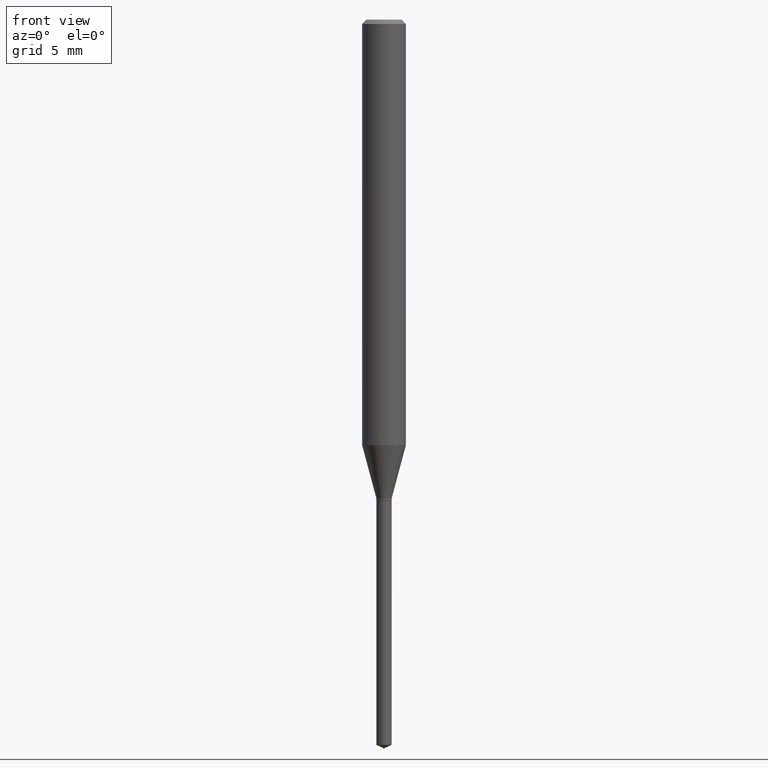
[diagram: clean part render]
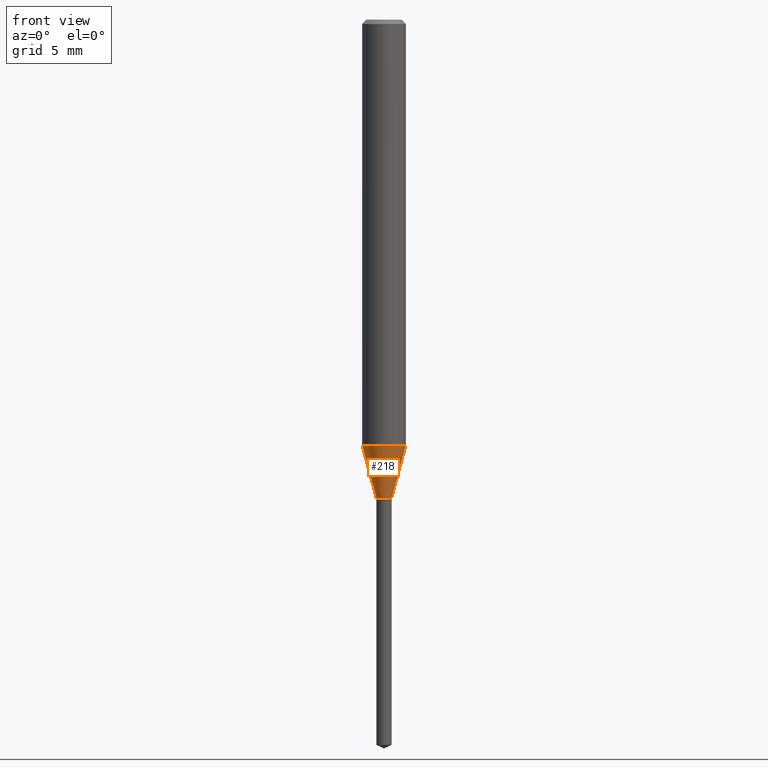
[diagram: same view with one face highlighted and labeled with its STEP entity id]
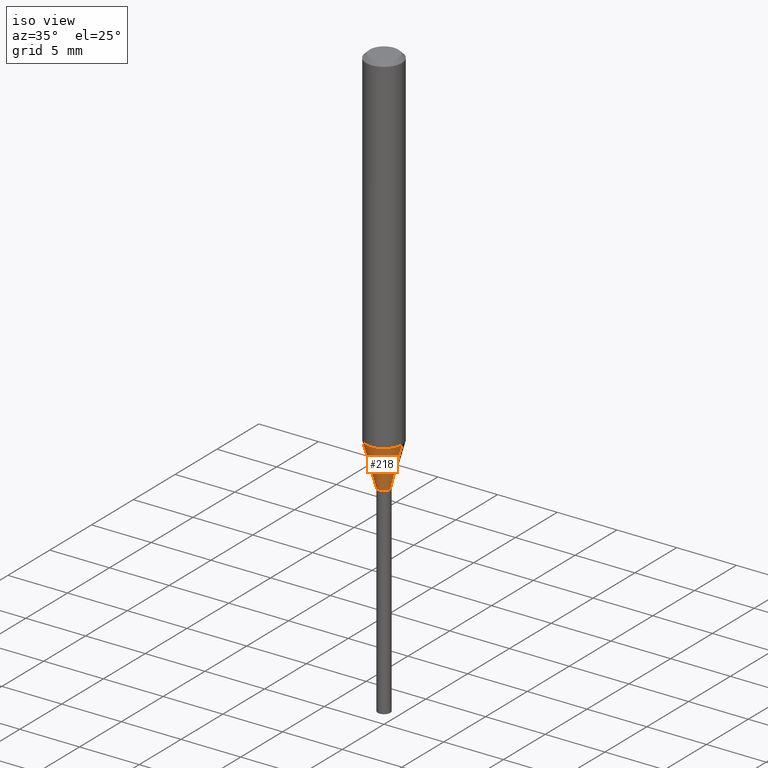
[diagram: same view with one face highlighted and labeled with its STEP entity id]
A machine part, front view. The second image highlights one B-rep face of the part: STEP entity #218.
A second angle (iso view) of the same face is appended — the face is thin or edge-on in the first view.
In plain terms, the highlighted conical surface has half-angle 15 deg.
Its self-contained STEP definition (entity closure, byte-faithful):
#7 = CIRCLE ( 'NONE', #34, 0.02065000000000002944 ) ;
#34 = AXIS2_PLACEMENT_3D ( 'NONE', #415, #409, #230 ) ;
#45 = FACE_OUTER_BOUND ( 'NONE', #292, .T. ) ;
#49 = CARTESIAN_POINT ( 'NONE',  ( 0.05905000000000015098, -4.426462504432298704E-15, -1.149689248989355095 ) ) ;
#55 = CIRCLE ( 'NONE', #83, 0.05905000000000014404 ) ;
#70 = CARTESIAN_POINT ( 'NONE',  ( 0.02065000000000002944, -4.658683550418409017E-15, -1.293000000000000149 ) ) ;
#76 = CARTESIAN_POINT ( 'NONE',  ( -0.05905000000000015098, -3.594543072848583502E-15, -1.149689248989355095 ) ) ;
#83 = AXIS2_PLACEMENT_3D ( 'NONE', #176, #434, #301 ) ;
#97 = CARTESIAN_POINT ( 'NONE',  ( -0.02065000000000002944, -4.367758296189726994E-15, -1.293000000000000149 ) ) ;
#98 = VERTEX_POINT ( 'NONE', #49 ) ;
#113 = VECTOR ( 'NONE', #340, 39.37007874015748854 ) ;
#120 = EDGE_CURVE ( 'NONE', #224, #402, #442, .T. ) ;
#123 = CARTESIAN_POINT ( 'NONE',  ( 0.02065000000000002944, -4.658683550418409017E-15, -1.293000000000000149 ) ) ;
#167 = ORIENTED_EDGE ( 'NONE', *, *, #344, .F. ) ;
#175 = DIRECTION ( 'NONE',  ( 1.000000000000000000, -6.982962677686254878E-15, 0.000000000000000000 ) ) ;
#176 = CARTESIAN_POINT ( 'NONE',  ( 2.811529195209884553E-29, -4.014118558314923784E-15, -1.149689248989355095 ) ) ;
#188 = EDGE_CURVE ( 'NONE', #224, #390, #7, .T. ) ;
#199 = LINE ( 'NONE', #70, #395 ) ;
#216 = ORIENTED_EDGE ( 'NONE', *, *, #188, .T. ) ;
#218 = ADVANCED_FACE ( 'NONE', ( #45 ), #307, .T. ) ;
#224 = VERTEX_POINT ( 'NONE', #335 ) ;
#230 = DIRECTION ( 'NONE',  ( 1.000000000000000000, -6.982962677686254878E-15, 0.000000000000000000 ) ) ;
#260 = ORIENTED_EDGE ( 'NONE', *, *, #419, .T. ) ;
#266 = ORIENTED_EDGE ( 'NONE', *, *, #120, .F. ) ;
#282 = DIRECTION ( 'NONE',  ( -2.445468806185136597E-29, 3.491481338843145583E-15, 1.000000000000000000 ) ) ;
#292 = EDGE_LOOP ( 'NONE', ( #266, #216, #260, #167 ) ) ;
#301 = DIRECTION ( 'NONE',  ( 1.000000000000000000, -6.982962677686272233E-15, 0.000000000000000000 ) ) ;
#307 = CONICAL_SURFACE ( 'NONE', #369, 0.02065000000000002944, 0.2617993877991499629 ) ;
#335 = CARTESIAN_POINT ( 'NONE',  ( -0.02065000000000002944, -4.377709018005430748E-15, -1.293000000000000149 ) ) ;
#340 = DIRECTION ( 'NONE',  ( -0.2588190451025212391, 5.211531920934549464E-15, 0.9659258262890679791 ) ) ;
#344 = EDGE_CURVE ( 'NONE', #402, #98, #55, .T. ) ;
#369 = AXIS2_PLACEMENT_3D ( 'NONE', #437, #282, #175 ) ;
#385 = DIRECTION ( 'NONE',  ( 0.2588190451025212391, 1.565188264969622362E-15, 0.9659258262890679791 ) ) ;
#390 = VERTEX_POINT ( 'NONE', #123 ) ;
#395 = VECTOR ( 'NONE', #385, 39.37007874015748854 ) ;
#402 = VERTEX_POINT ( 'NONE', #76 ) ;
#409 = DIRECTION ( 'NONE',  ( -2.445468806185136597E-29, 3.491481338843145583E-15, 1.000000000000000000 ) ) ;
#415 = CARTESIAN_POINT ( 'NONE',  ( 3.161991166397382055E-29, -4.514485371124187300E-15, -1.293000000000000149 ) ) ;
#419 = EDGE_CURVE ( 'NONE', #390, #98, #199, .T. ) ;
#434 = DIRECTION ( 'NONE',  ( -2.445468806185136597E-29, 3.491481338843145583E-15, 1.000000000000000000 ) ) ;
#437 = CARTESIAN_POINT ( 'NONE',  ( 3.161991166397382055E-29, -4.514485371124187300E-15, -1.293000000000000149 ) ) ;
#442 = LINE ( 'NONE', #97, #113 ) ;